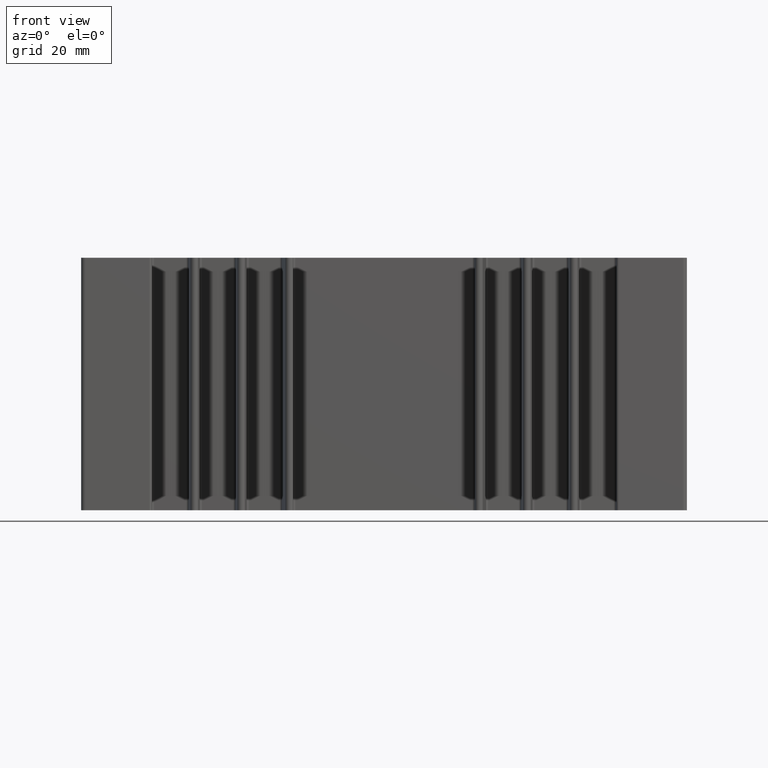
[diagram: clean part render]
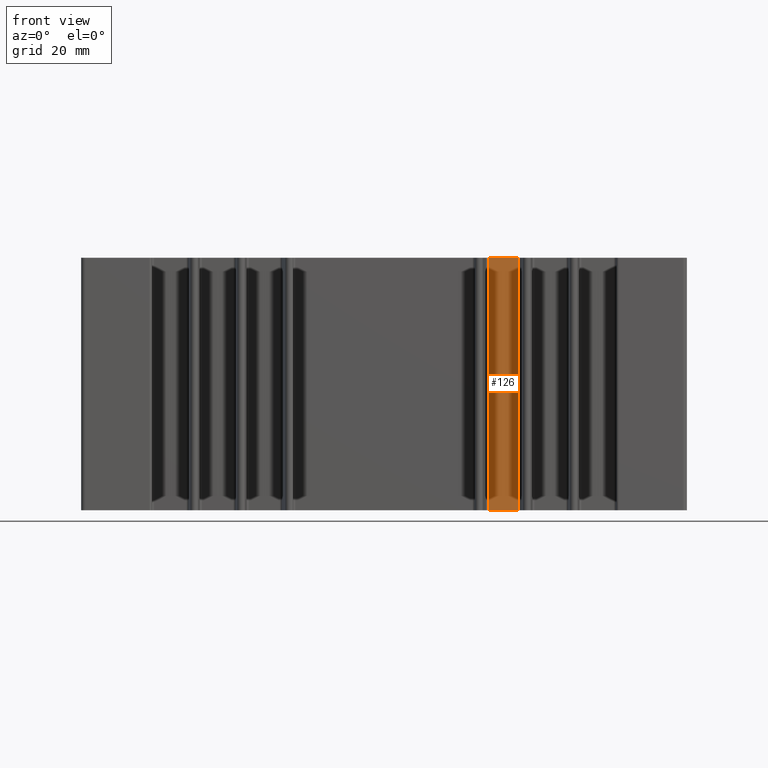
[diagram: same view with one face highlighted and labeled with its STEP entity id]
A machine part, front view. The second image highlights one B-rep face of the part: STEP entity #126.
In plain terms, the highlighted planar face has unit normal (-0.021, 0.9998, 0).
Its self-contained STEP definition (entity closure, byte-faithful):
#116 = EDGE_LOOP ( 'NONE', ( #6371, #704, #2974, #5211 ) ) ;
#126 = ADVANCED_FACE ( 'NONE', ( #2860 ), #5424, .F. ) ;
#413 = EDGE_CURVE ( 'NONE', #1943, #6723, #722, .T. ) ;
#704 = ORIENTED_EDGE ( 'NONE', *, *, #2607, .F. ) ;
#722 = LINE ( 'NONE', #3296, #3305 ) ;
#1311 = DIRECTION ( 'NONE',  ( 0.0000000000000000000, 0.0000000000000000000, -1.000000000000000000 ) ) ;
#1479 = CARTESIAN_POINT ( 'NONE',  ( 20.67849507560834965, -2.871919667280995014, 0.0000000000000000000 ) ) ;
#1513 = EDGE_CURVE ( 'NONE', #2985, #7784, #2706, .T. ) ;
#1621 = DIRECTION ( 'NONE',  ( 0.0000000000000000000, 0.0000000000000000000, -1.000000000000000000 ) ) ;
#1722 = CARTESIAN_POINT ( 'NONE',  ( 26.69526507560834716, -2.745761667281005014, 50.00000000000000000 ) ) ;
#1943 = VERTEX_POINT ( 'NONE', #1479 ) ;
#2219 = DIRECTION ( 'NONE',  ( -0.02096312086612310208, 0.9997802496366651193, 0.0000000000000000000 ) ) ;
#2607 = EDGE_CURVE ( 'NONE', #7784, #6723, #4512, .T. ) ;
#2706 = LINE ( 'NONE', #5276, #3519 ) ;
#2803 = CARTESIAN_POINT ( 'NONE',  ( 20.67849507560834965, -2.871919667280995014, 50.00000000000000000 ) ) ;
#2860 = FACE_OUTER_BOUND ( 'NONE', #116, .T. ) ;
#2974 = ORIENTED_EDGE ( 'NONE', *, *, #1513, .F. ) ;
#2985 = VERTEX_POINT ( 'NONE', #2803 ) ;
#3066 = EDGE_CURVE ( 'NONE', #2985, #1943, #4823, .T. ) ;
#3296 = CARTESIAN_POINT ( 'NONE',  ( 20.67849507560834965, -2.871919667280995014, 0.0000000000000000000 ) ) ;
#3305 = VECTOR ( 'NONE', #5871, 1000.000000000000114 ) ;
#3519 = VECTOR ( 'NONE', #7843, 1000.000000000000114 ) ;
#3830 = VECTOR ( 'NONE', #1311, 1000.000000000000000 ) ;
#4512 = LINE ( 'NONE', #7090, #3830 ) ;
#4786 = AXIS2_PLACEMENT_3D ( 'NONE', #7990, #2219, #4789 ) ;
#4789 = DIRECTION ( 'NONE',  ( 0.0000000000000000000, 0.0000000000000000000, 1.000000000000000000 ) ) ;
#4823 = LINE ( 'NONE', #7400, #4908 ) ;
#4908 = VECTOR ( 'NONE', #1621, 1000.000000000000000 ) ;
#5141 = CARTESIAN_POINT ( 'NONE',  ( 26.69526507560834716, -2.745761667281005014, 0.0000000000000000000 ) ) ;
#5211 = ORIENTED_EDGE ( 'NONE', *, *, #3066, .T. ) ;
#5276 = CARTESIAN_POINT ( 'NONE',  ( 20.67849507560834965, -2.871919667280995014, 50.00000000000000000 ) ) ;
#5424 = PLANE ( 'NONE',  #4786 ) ;
#5871 = DIRECTION ( 'NONE',  ( 0.9997802496366651193, 0.02096312086612309861, 0.0000000000000000000 ) ) ;
#6371 = ORIENTED_EDGE ( 'NONE', *, *, #413, .T. ) ;
#6723 = VERTEX_POINT ( 'NONE', #5141 ) ;
#7090 = CARTESIAN_POINT ( 'NONE',  ( 26.69526507560834716, -2.745761667281005014, 50.00000000000000000 ) ) ;
#7400 = CARTESIAN_POINT ( 'NONE',  ( 20.67849507560834965, -2.871919667280995014, 50.00000000000000000 ) ) ;
#7784 = VERTEX_POINT ( 'NONE', #1722 ) ;
#7843 = DIRECTION ( 'NONE',  ( 0.9997802496366651193, 0.02096312086612309861, 0.0000000000000000000 ) ) ;
#7990 = CARTESIAN_POINT ( 'NONE',  ( 20.67849507560834965, -2.871919667280995014, 50.00000000000000000 ) ) ;